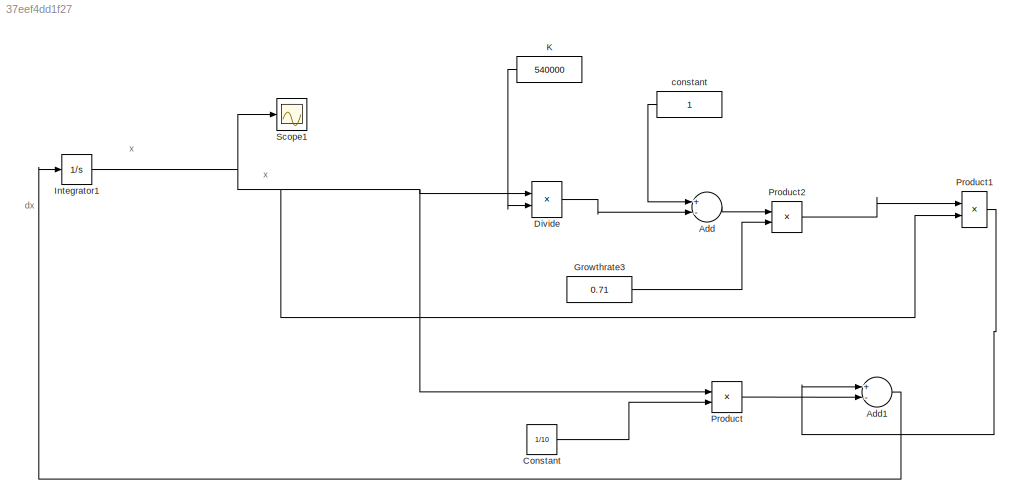
MODEL slx_37eef4dd1f27
KIND model
BLOCK [Sum] Add
  InputSameDT = off
  Inputs = +-
  OutDataTypeStr = Inherit: Inherit via internal rule
  Ports = [2, 1]
  SaturateOnIntegerOverflow = off
BLOCK [Sum] Add1
  InputSameDT = off
  Inputs = +-
  OutDataTypeStr = Inherit: Inherit via internal rule
  Ports = [2, 1]
  SaturateOnIntegerOverflow = off
BLOCK [Constant] Constant
  Value = 1/10
BLOCK [Product] Divide
  InputSameDT = off
  Inputs = */
  OutDataTypeStr = Inherit: Inherit via internal rule
  Ports = [2, 1]
  RndMeth = Floor
  SaturateOnIntegerOverflow = off
BLOCK [Constant] Growthrate3
  Value = 0.71
BLOCK [Integrator] Integrator1
  InitialCondition = 540000/4
  Ports = [1, 1]
BLOCK [Constant] K
  Value = 540000
BLOCK [Product] Product
  InputSameDT = off
  OutDataTypeStr = Inherit: Inherit via internal rule
  Ports = [2, 1]
  RndMeth = Floor
  SaturateOnIntegerOverflow = off
BLOCK [Product] Product1
  InputSameDT = off
  OutDataTypeStr = Inherit: Inherit via internal rule
  Ports = [2, 1]
  RndMeth = Floor
  SaturateOnIntegerOverflow = off
BLOCK [Product] Product2
  InputSameDT = off
  OutDataTypeStr = Inherit: Inherit via internal rule
  Ports = [2, 1]
  RndMeth = Floor
  SaturateOnIntegerOverflow = off
BLOCK [Scope] Scope1
  DataFormat = StructureWithTime
  Floating = off
  NumInputPorts = 1
  Ports = [1]
  SampleTime = 0
  ShowLegends = off
BLOCK [Constant] constant
ANNOTATION (root): dx
ANNOTATION (root): x
LINE Add1:1 -> Integrator1:1
LINE Add:1 -> Product2:1
LINE Constant:1 -> Product:2
LINE Divide:1 -> Add:2
LINE Growthrate3:1 -> Product2:2
NET Integrator1:1 -> Divide:1, Product1:2, Product:1, Scope1:1
LINE K:1 -> Divide:2
LINE Product1:1 -> Add1:1
LINE Product2:1 -> Product1:1
LINE Product:1 -> Add1:2
LINE constant:1 -> Add:1
note: NET lines group one-source signal fan-out (src -> all destinations, sorted); 1:1 wires keep LINE
